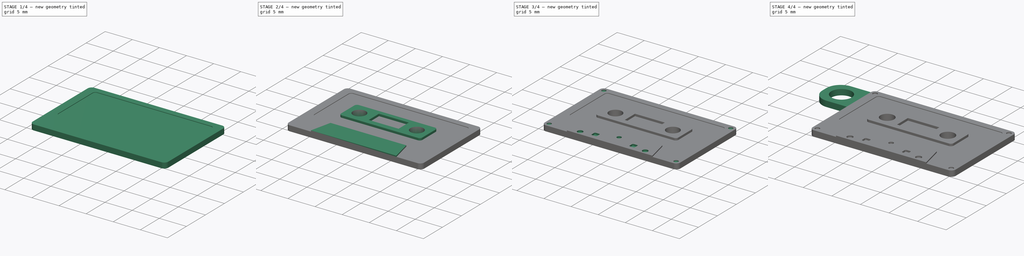
[diagram: build sequence overview — one tinted view per stage of 4, left to right]
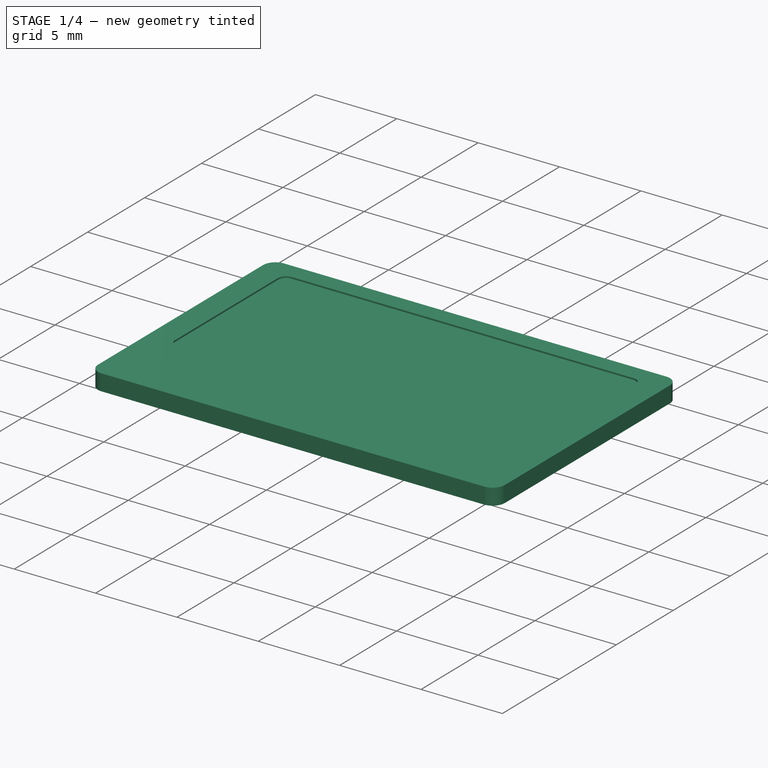
[diagram: stage 1 of 4 — iso view after this stage's code; geometry added in this stage tinted green]
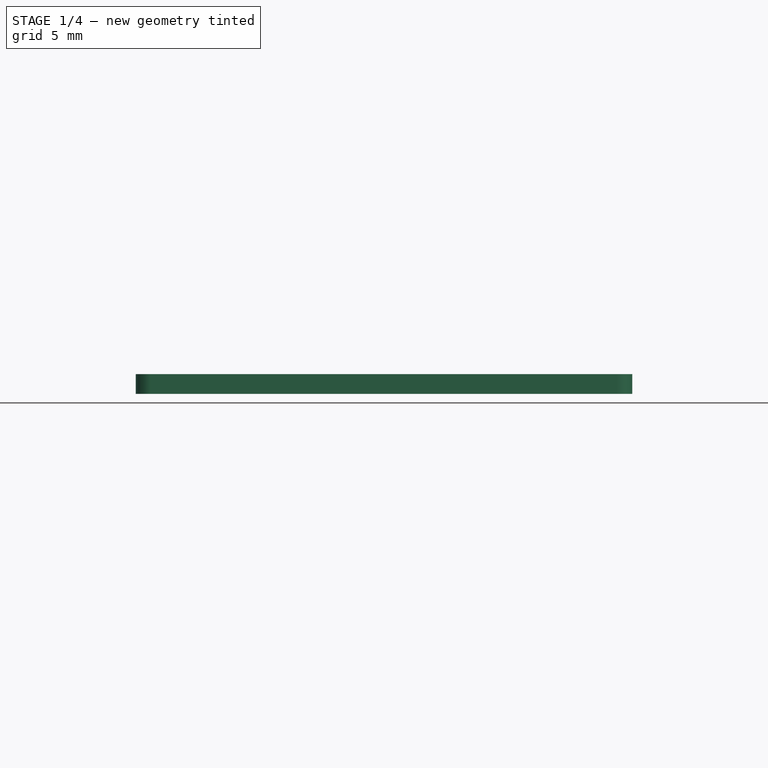
[diagram: stage 1 of 4 — front view after this stage's code; geometry added in this stage tinted green]
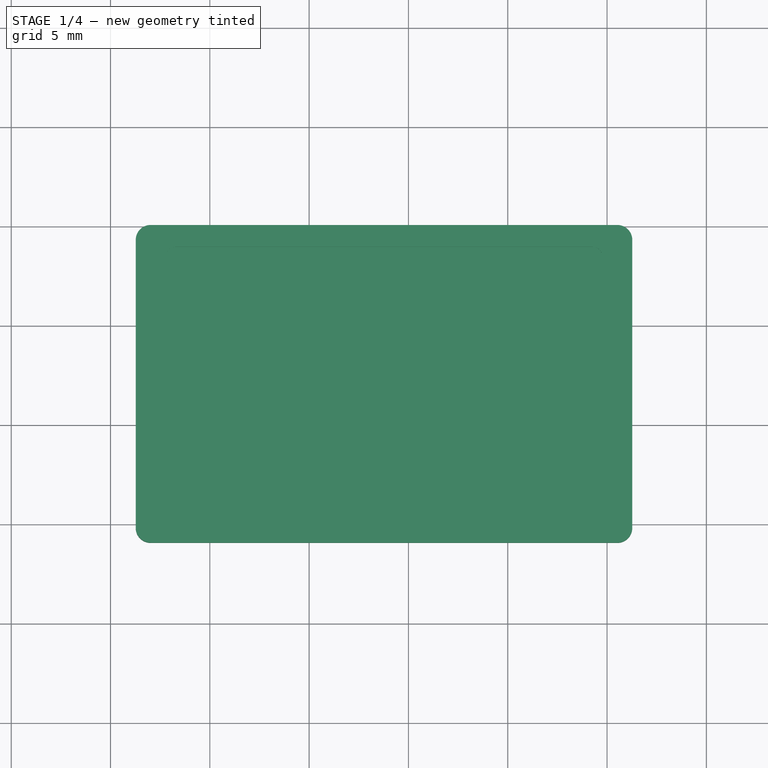
[diagram: stage 1 of 4 — top view after this stage's code; geometry added in this stage tinted green]
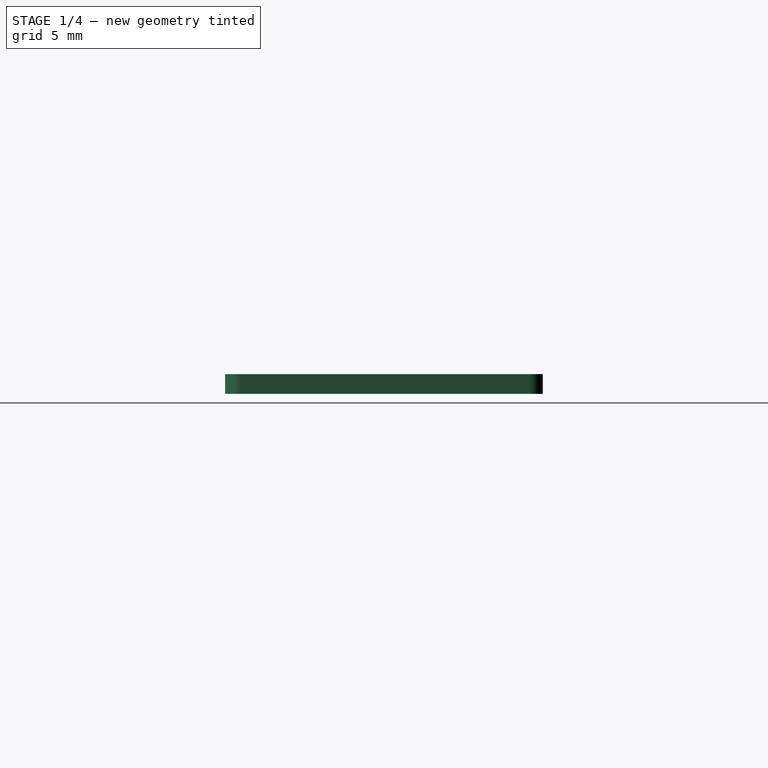
[diagram: stage 1 of 4 — right view after this stage's code; geometry added in this stage tinted green]
FCSTD DOCUMENT  (FreeCAD 0.18R16146 (Git))
Label: tape_keyring
License: All rights reserved
LicenseURL: http://en.wikipedia.org/wiki/All_rights_reserved
objects: Sketcher::SketchObject×9, PartDesign::Pocket×5, PartDesign::Pad×4, PartDesign::Fillet×2, PartDesign::Body×1
note: 30 computed .brp shape members not serialized (recipe doc carries the construction recipe); baked Part::Feature solids carry a one-line shape summary decoded from their .brp

FEATURE [Sketcher::SketchObject] Sketch
  MapMode = 5
  Support = -> [XY_Plane]
  sketch-geometry (4):
    g0: LineSegment StartX=-8.73127 StartY=10.0752 StartZ=0 EndX=16.2687 EndY=10.0752 EndZ=0
    g1: LineSegment StartX=16.2687 StartY=10.0752 StartZ=0 EndX=16.2687 EndY=-5.9248 EndZ=0
    g2: LineSegment StartX=16.2687 StartY=-5.9248 StartZ=0 EndX=-8.73127 EndY=-5.9248 EndZ=0
    g3: LineSegment StartX=-8.73127 StartY=-5.9248 StartZ=0 EndX=-8.73127 EndY=10.0752 EndZ=0
  constraints (10):
    c: Coincident(g0,g1)
    c: Coincident(g1,g2)
    c: Coincident(g2,g3)
    c: Coincident(g3,g0)
    c: Horizontal(g0)
    c: Horizontal(g2)
    c: Vertical(g1)
    c: Vertical(g3)
    c: DistanceX(g0,g0) = 25
    c: Distance(g3) = 16
FEATURE [PartDesign::Pad] Pad
  Length = 1
  Length2 = 100
  Profile = -> Sketch
  Type = 0
FEATURE [Sketcher::SketchObject] Sketch001
  ExternalGeometry = -> [Pad]
  MapMode = 5
  Placement = pos=(0,0,1) rot=(0,0,1;0rad)
  Support = -> [Pad]
  sketch-geometry (11):
    g0: LineSegment StartX=-6.73127 StartY=8.9752 StartZ=0 EndX=14.2687 EndY=8.9752 EndZ=0
    g1: LineSegment StartX=14.7687 StartY=8.4752 StartZ=0 EndX=14.7687 EndY=-0.524804 EndZ=0
    g2: LineSegment StartX=14.2687 StartY=-1.0248 StartZ=0 EndX=-6.73127 EndY=-1.0248 EndZ=0
    g3: LineSegment StartX=-7.23127 StartY=-0.524804 StartZ=0 EndX=-7.23127 EndY=8.4752 EndZ=0
    g4: LineSegment [constr] StartX=3.76873 StartY=11.4159 StartZ=0 EndX=3.76873 EndY=-6.68407 EndZ=0
    g5: ArcOfCircle CenterX=-6.73127 CenterY=8.4752 CenterZ=0 NormalX=0 NormalY=0 NormalZ=1 AngleXU=0 Radius=0.5 StartAngle=1.5708 EndAngle=3.14159
    g6: ArcOfCircle CenterX=-6.73127 CenterY=-0.524804 CenterZ=0 NormalX=0 NormalY=0 NormalZ=1 AngleXU=0 Radius=0.5 StartAngle=3.14159 EndAngle=4.71239
    g7: ArcOfCircle CenterX=14.2687 CenterY=8.4752 CenterZ=0 NormalX=0 NormalY=0 NormalZ=1 AngleXU=0 Radius=0.5 StartAngle=1.381e-13 EndAngle=1.5708
    g8: ArcOfCircle CenterX=14.2687 CenterY=-0.524804 CenterZ=0 NormalX=0 NormalY=0 NormalZ=1 AngleXU=0 Radius=0.5 StartAngle=4.71239 EndAngle=6.28319
    g9: GeomPoint X=3.76873 Y=8.9752 Z=0
    g10: GeomPoint X=3.76873 Y=10.0752 Z=0
  constraints (24):
    c: Horizontal(g2)
    c: Vertical(g1)
    c: Vertical(g3)
    c: Symmetric(g-4,g-5,g4)
    c: Tangent(g0,g5) = 1.5708
    c: Tangent(g3,g5) = 1.5708
    c: Tangent(g3,g6) = 1.5708
    c: Tangent(g2,g6) = 1.5708
    c: Tangent(g0,g7) = 1.5708
    c: Tangent(g1,g7) = 1.5708
    c: Tangent(g1,g8) = 1.5708
    c: Tangent(g2,g8) = 1.5708
    c: PointOnObject(g9,g0)
    c: PointOnObject(g9,g4)
    c: PointOnObject(g10,g4)
    c: PointOnObject(g10,g-3)
    c: DistanceY(g9,g10) = 1.1
    c: Symmetric(g0,g0,g4)
    c: Equal(g8,g6)
    c: Equal(g6,g5)
    c: Equal(g5,g7)
    c: Radius(g7) = 0.5
    c: DistanceX(g3,g1) = 22
    c: DistanceY(g2,g0) = 10
FEATURE [PartDesign::Pocket] Pocket
  BaseFeature = -> Pad
  Length = 0.1
  Length2 = 100
  Profile = -> Sketch001
  Type = 0
FEATURE [PartDesign::Fillet] Fillet
  Base = -> Pocket [Edge1,Edge5,Edge8,Edge2]
  BaseFeature = -> Pocket
  Radius = 0.75
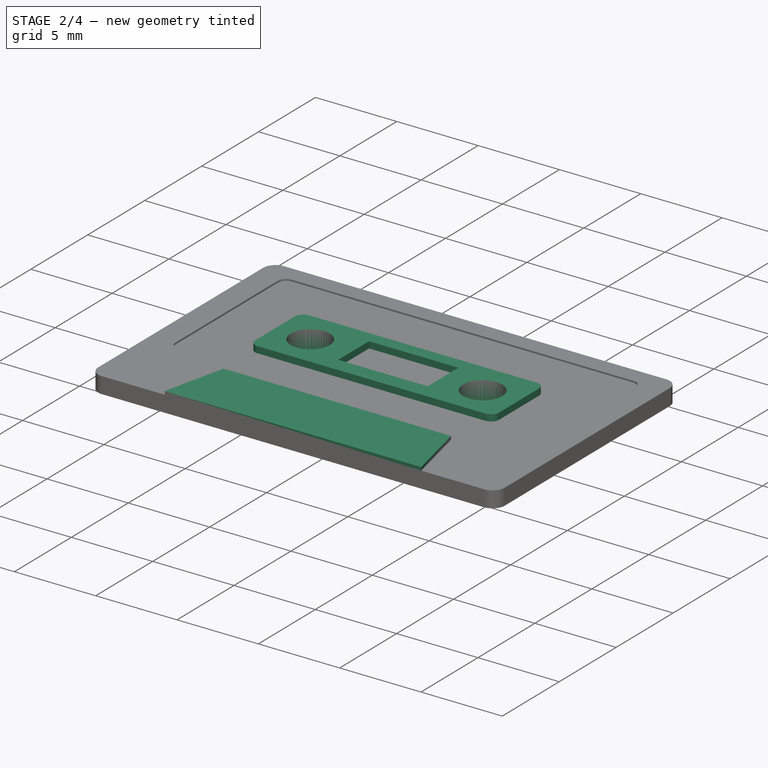
[diagram: stage 2 of 4 — iso view after this stage's code; geometry added in this stage tinted green]
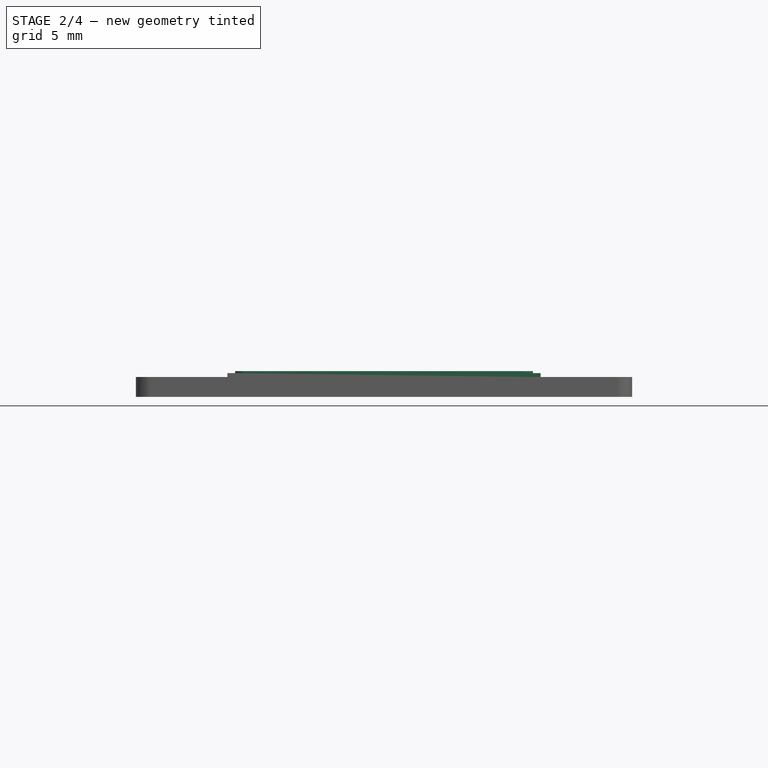
[diagram: stage 2 of 4 — front view after this stage's code; geometry added in this stage tinted green]
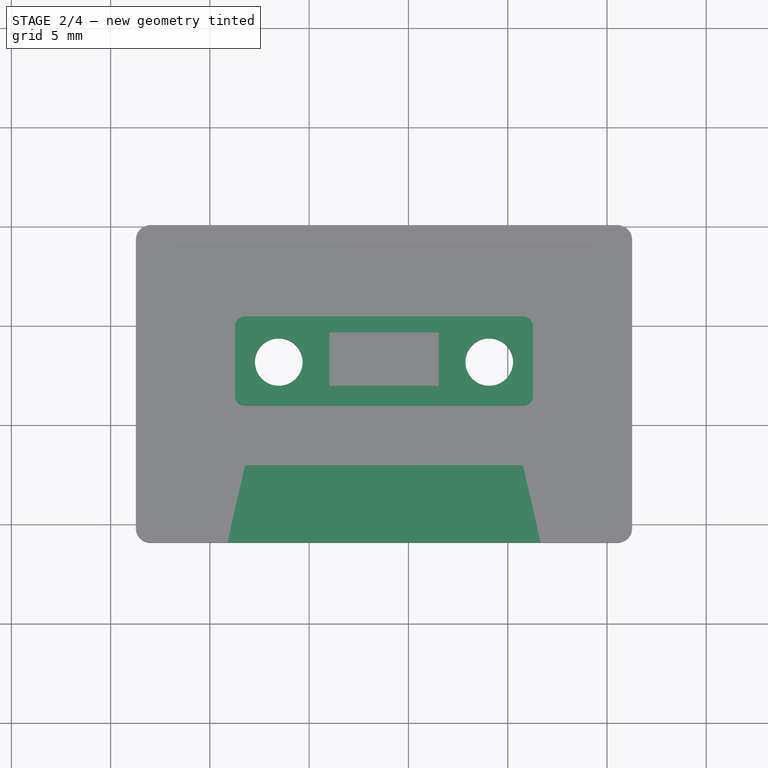
[diagram: stage 2 of 4 — top view after this stage's code; geometry added in this stage tinted green]
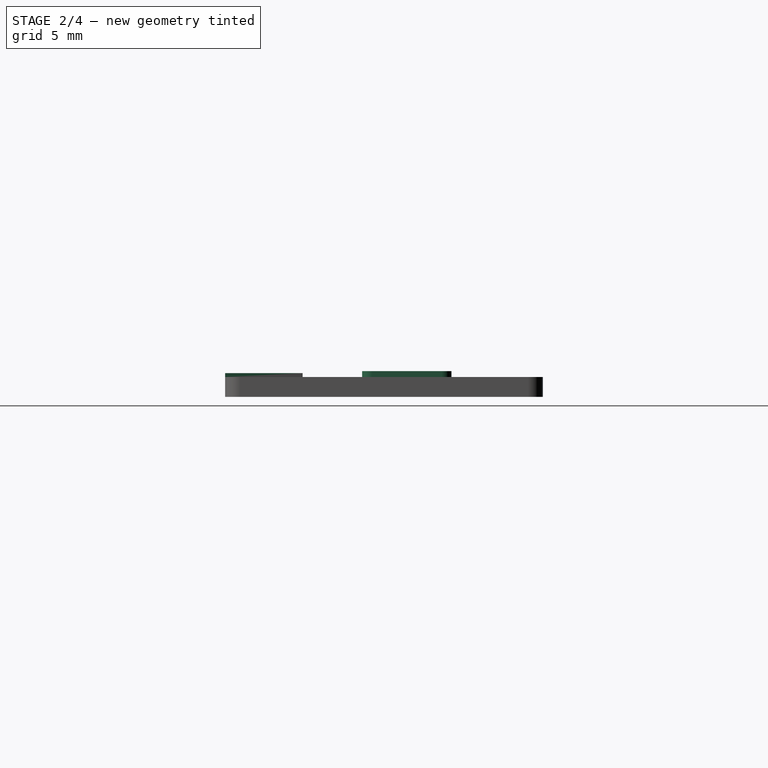
[diagram: stage 2 of 4 — right view after this stage's code; geometry added in this stage tinted green]
FEATURE [Sketcher::SketchObject] Sketch002
  ExternalGeometry = -> [Fillet]
  MapMode = 5
  Placement = pos=(0,0,1) rot=(0,0,1;0rad)
  Support = -> [Fillet]
  sketch-geometry (5):
    g0: LineSegment [constr] StartX=3.76873 StartY=-26.2208 StartZ=0 EndX=3.76873 EndY=73.7792 EndZ=0
    g1: LineSegment StartX=-4.12009 StartY=-5.9248 StartZ=0 EndX=-3.23127 EndY=-2.0248 EndZ=0
    g2: LineSegment StartX=-3.23127 StartY=-2.0248 StartZ=0 EndX=10.7687 EndY=-2.0248 EndZ=0
    g3: LineSegment StartX=10.7687 StartY=-2.0248 StartZ=0 EndX=11.6575 EndY=-5.9248 EndZ=0
    g4: LineSegment StartX=-4.12009 StartY=-5.9248 StartZ=0 EndX=11.6575 EndY=-5.9248 EndZ=0
  constraints (13):
    c: Symmetric(g-4,g-4,g0)
    c: Symmetric(g-3,g-3,g0)
    c: PointOnObject(g1,g-3)
    c: Coincident(g4,g1)
    c: Coincident(g4,g3)
    c: Symmetric(g2,g1,g0)
    c: Coincident(g3,g2)
    c: Coincident(g2,g1)
    c: DistanceY(g0,g0) = 100
    c: Symmetric(g1,g3,g0)
    c: DistanceX(g2,g2) = 14
    c: Distance(g1) = 4
    c: DistanceY(g1,g-4) = 1
FEATURE [PartDesign::Pad] Pad001
  BaseFeature = -> Fillet
  Length = 0.2
  Length2 = 100
  Profile = -> Sketch002
  Type = 0
FEATURE [Sketcher::SketchObject] Sketch003
  ExternalGeometry = -> [Pad001]
  MapMode = 5
  Placement = pos=(0,0,0.9) rot=(0,0,1;0rad)
  Support = -> [Pad001]
  sketch-geometry (13):
    g0: LineSegment [constr] StartX=3.76873 StartY=12.8844 StartZ=0 EndX=3.76873 EndY=-10.4835 EndZ=0
    g1: LineSegment StartX=-3.23127 StartY=5.4752 StartZ=0 EndX=10.7687 EndY=5.4752 EndZ=0
    g2: LineSegment StartX=11.2687 StartY=4.9752 StartZ=0 EndX=11.2687 EndY=1.4752 EndZ=0
    g3: LineSegment StartX=10.7687 StartY=0.975196 StartZ=0 EndX=-3.23127 EndY=0.975196 EndZ=0
    g4: LineSegment StartX=-3.73127 StartY=1.4752 StartZ=0 EndX=-3.73127 EndY=4.9752 EndZ=0
    g5: ArcOfCircle CenterX=-3.23127 CenterY=4.9752 CenterZ=0 NormalX=0 NormalY=0 NormalZ=1 AngleXU=0 Radius=0.5 StartAngle=1.5708 EndAngle=3.14159
    g6: ArcOfCircle CenterX=10.7687 CenterY=4.9752 CenterZ=0 NormalX=0 NormalY=0 NormalZ=1 AngleXU=0 Radius=0.5 StartAngle=4e-16 EndAngle=1.5708
    g7: ArcOfCircle CenterX=10.7687 CenterY=1.4752 CenterZ=0 NormalX=0 NormalY=0 NormalZ=1 AngleXU=0 Radius=0.5 StartAngle=4.71239 EndAngle=6.28319
    g8: ArcOfCircle CenterX=-3.23127 CenterY=1.4752 CenterZ=0 NormalX=0 NormalY=0 NormalZ=1 AngleXU=0 Radius=0.5 StartAngle=3.14159 EndAngle=4.71239
    g9: LineSegment StartX=1.02538 StartY=4.6752 StartZ=0 EndX=6.52538 EndY=4.6752 EndZ=0
    g10: LineSegment StartX=6.52538 StartY=4.6752 StartZ=0 EndX=6.52538 EndY=1.9752 EndZ=0
    g11: LineSegment StartX=6.52538 StartY=1.9752 StartZ=0 EndX=1.02538 EndY=1.9752 EndZ=0
    g12: LineSegment StartX=1.02538 StartY=1.9752 StartZ=0 EndX=1.02538 EndY=4.6752 EndZ=0
  constraints (33):
    c: Symmetric(g-3,g-3,g0)
    c: Symmetric(g-4,g-4,g0)
    c: Horizontal(g1)
    c: Horizontal(g3)
    c: Vertical(g2)
    c: Vertical(g4)
    c: Tangent(g4,g5) = 1.5708
    c: Tangent(g1,g5) = 1.5708
    c: Tangent(g1,g6) = 1.5708
    c: Tangent(g2,g6) = 1.5708
    c: Tangent(g2,g7) = 1.5708
    c: Tangent(g3,g7) = 1.5708
    c: Tangent(g3,g8) = 1.5708
    c: Tangent(g4,g8) = 1.5708
    c: Equal(g5,g6)
    c: Equal(g6,g7)
    c: Equal(g7,g8)
    c: Radius(g6) = 0.5
    c: DistanceX(g4,g2) = 15
    c: DistanceY(g3,g1) = 4.5
    c: DistanceY(g1,g-3) = 3.5
    c: Symmetric(g1,g1,g0)
    c: Coincident(g9,g10)
    c: Coincident(g10,g11)
    c: Coincident(g11,g12)
    c: Coincident(g12,g9)
    c: Horizontal(g9)
    c: Horizontal(g11)
    c: Vertical(g10)
    c: Vertical(g12)
    c: DistanceX(g9,g9) = 5.5
    c: DistanceY(g12,g12) = 2.7
    c: DistanceY(g9,g1) = 0.8
FEATURE [PartDesign::Pad] Pad002
  BaseFeature = -> Pad001
  Length = 0.4
  Length2 = 100
  Profile = -> Sketch003
  Type = 0
FEATURE [Sketcher::SketchObject] Sketch004
  ExternalGeometry = -> [Pad002]
  MapMode = 5
  Placement = pos=(0,0,1.3) rot=(0,0,1;0rad)
  Support = -> [Pad002]
  sketch-geometry (4):
    g0: LineSegment [constr] StartX=-11.1736 StartY=3.1752 StartZ=0 EndX=18.9391 EndY=3.1752 EndZ=0
    g1: LineSegment [constr] StartX=3.76873 StartY=12.8052 StartZ=0 EndX=3.76873 EndY=-10.0766 EndZ=0
    g2: Circle CenterX=-1.53127 CenterY=3.1752 CenterZ=0 NormalX=0 NormalY=0 NormalZ=1 AngleXU=0 Radius=1.2
    g3: Circle CenterX=9.06873 CenterY=3.1752 CenterZ=0 NormalX=0 NormalY=0 NormalZ=1 AngleXU=0 Radius=1.2
  constraints (9):
    c: Symmetric(g-3,g-3,g1)
    c: Symmetric(g-4,g-4,g1)
    c: Radius(g2) = 1.2
    c: DistanceY(g-4,g2) = 2.2
    c: DistanceX(g-5,g2) = 2.2
    c: PointOnObject(g2,g0)
    c: Horizontal(g0)
    c: Equal(g2,g3)
    c: Symmetric(g2,g3,g1)
FEATURE [PartDesign::Pocket] Pocket001
  BaseFeature = -> Pad002
  Length = 5
  Length2 = 100
  Profile = -> Sketch004
  Type = 0
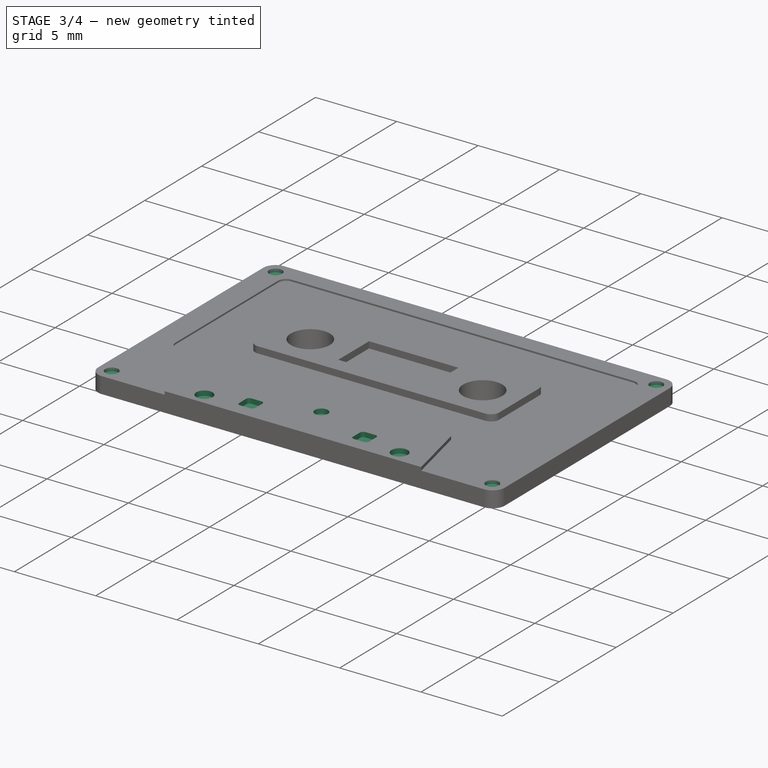
[diagram: stage 3 of 4 — iso view after this stage's code; geometry added in this stage tinted green]
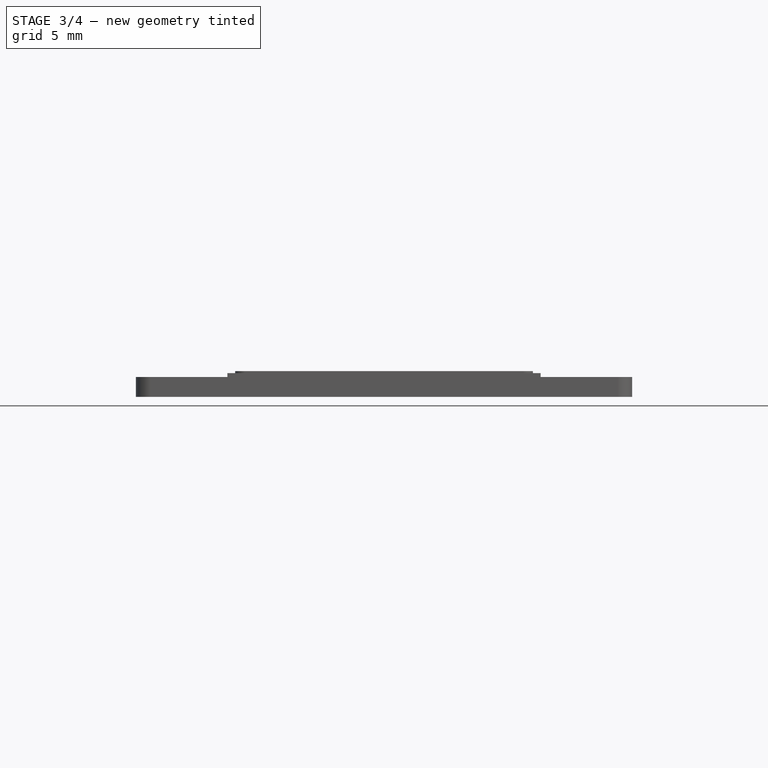
[diagram: stage 3 of 4 — front view after this stage's code; geometry added in this stage tinted green]
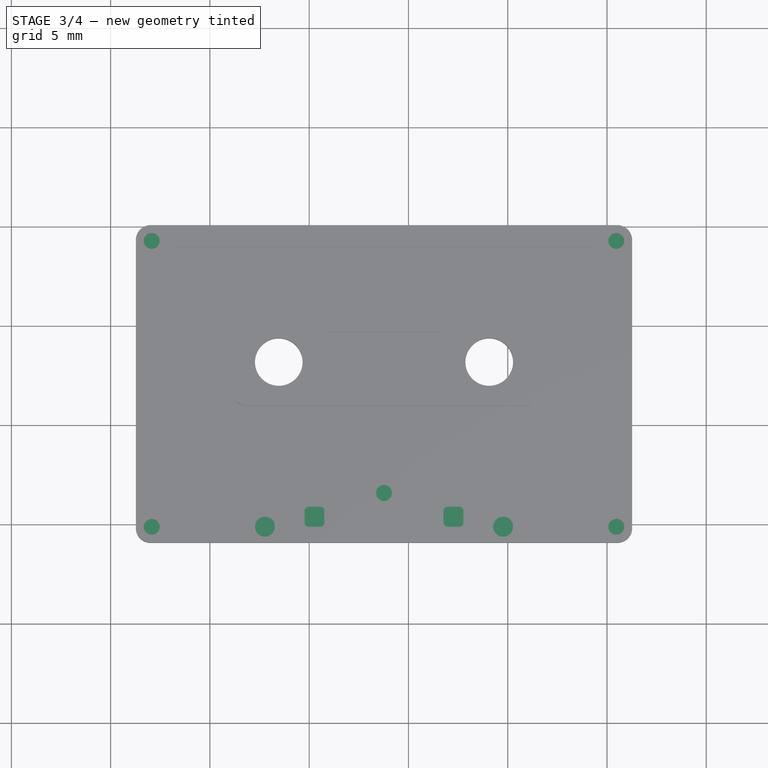
[diagram: stage 3 of 4 — top view after this stage's code; geometry added in this stage tinted green]
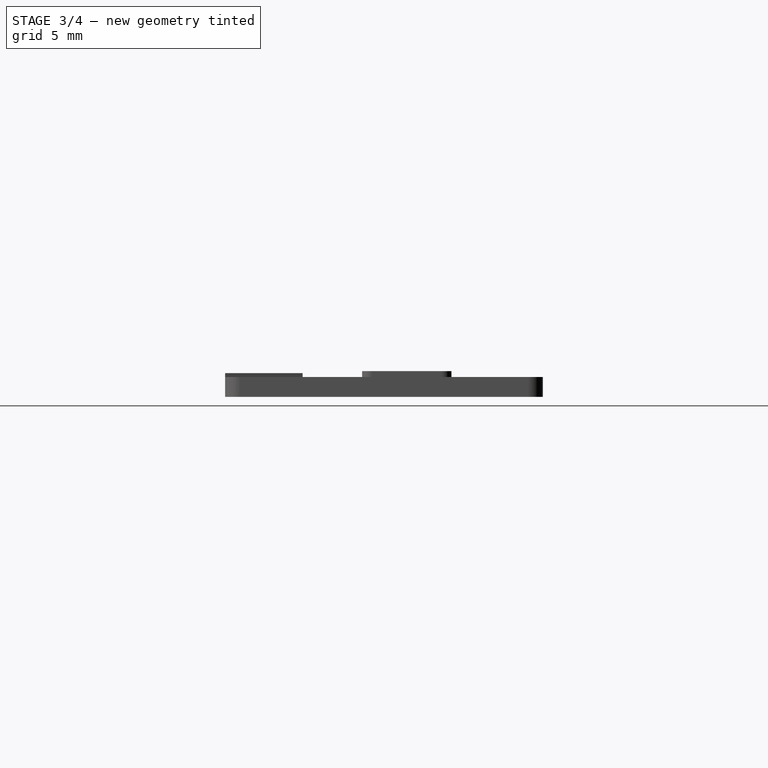
[diagram: stage 3 of 4 — right view after this stage's code; geometry added in this stage tinted green]
FEATURE [Sketcher::SketchObject] Sketch005
  ExternalGeometry = -> [Pocket001]
  MapMode = 5
  Placement = pos=(0,0,1) rot=(0,0,1;0rad)
  Support = -> [Pocket001]
  sketch-geometry (5):
    g0: LineSegment [constr] StartX=3.76873 StartY=11.7611 StartZ=0 EndX=3.76873 EndY=-9.15786 EndZ=0
    g1: Circle CenterX=-7.93127 CenterY=9.2752 CenterZ=0 NormalX=0 NormalY=0 NormalZ=1 AngleXU=0 Radius=0.4
    g2: Circle CenterX=-7.93127 CenterY=-5.1248 CenterZ=0 NormalX=0 NormalY=0 NormalZ=1 AngleXU=0 Radius=0.4
    g3: Circle CenterX=15.4687 CenterY=-5.1248 CenterZ=0 NormalX=0 NormalY=0 NormalZ=1 AngleXU=0 Radius=0.4
    g4: Circle CenterX=15.4687 CenterY=9.2752 CenterZ=0 NormalX=0 NormalY=0 NormalZ=1 AngleXU=0 Radius=0.4
  constraints (11):
    c: Symmetric(g-3,g-3,g0)
    c: Radius(g1) = 0.4
    c: DistanceY(g1,g-3) = 0.8
    c: DistanceX(g-5,g1) = 0.8
    c: Equal(g4,g1)
    c: Equal(g1,g2)
    c: Equal(g2,g3)
    c: DistanceX(g-5,g2) = 0.8
    c: DistanceY(g-7,g2) = 0.8
    c: Symmetric(g2,g3,g0)
    c: Symmetric(g4,g1,g0)
FEATURE [PartDesign::Pocket] Pocket002
  BaseFeature = -> Pocket001
  Length = 0.2
  Length2 = 100
  Profile = -> Sketch005
  Type = 0
FEATURE [Sketcher::SketchObject] Sketch006
  ExternalGeometry = -> [Pocket002]
  MapMode = 5
  Placement = pos=(0,0,1.2) rot=(0,0,1;0rad)
  Support = -> [Pocket002]
  sketch-geometry (20):
    g0: LineSegment [constr] StartX=3.76873 StartY=12.2635 StartZ=0 EndX=3.76873 EndY=-9.8064 EndZ=0
    g1: Circle CenterX=3.76873 CenterY=-3.4248 CenterZ=0 NormalX=0 NormalY=0 NormalZ=1 AngleXU=0 Radius=0.4
    g2: Circle CenterX=-2.23127 CenterY=-5.1248 CenterZ=0 NormalX=0 NormalY=0 NormalZ=1 AngleXU=0 Radius=0.5
    g3: Circle CenterX=9.76873 CenterY=-5.1248 CenterZ=0 NormalX=0 NormalY=0 NormalZ=1 AngleXU=0 Radius=0.5
    g4: LineSegment StartX=-0.0312708 StartY=-4.1248 StartZ=0 EndX=0.568729 EndY=-4.1248 EndZ=0
    g5: LineSegment StartX=0.768729 StartY=-4.3248 StartZ=0 EndX=0.768729 EndY=-4.9248 EndZ=0
    g6: LineSegment StartX=0.568729 StartY=-5.1248 StartZ=0 EndX=-0.0312708 EndY=-5.1248 EndZ=0
    g7: LineSegment StartX=-0.231271 StartY=-4.9248 StartZ=0 EndX=-0.231271 EndY=-4.3248 EndZ=0
    g8: ArcOfCircle CenterX=-0.0312708 CenterY=-4.3248 CenterZ=0 NormalX=0 NormalY=0 NormalZ=1 AngleXU=0 Radius=0.2 StartAngle=1.5708 EndAngle=3.14159
    g9: ArcOfCircle CenterX=0.568729 CenterY=-4.3248 CenterZ=0 NormalX=0 NormalY=0 NormalZ=1 AngleXU=0 Radius=0.2 StartAngle=0 EndAngle=1.5708
    g10: ArcOfCircle CenterX=0.568729 CenterY=-4.9248 CenterZ=0 NormalX=0 NormalY=0 NormalZ=1 AngleXU=0 Radius=0.2 StartAngle=4.71239 EndAngle=6.28319
    g11: ArcOfCircle CenterX=-0.0312708 CenterY=-4.9248 CenterZ=0 NormalX=0 NormalY=0 NormalZ=1 AngleXU=0 Radius=0.2 StartAngle=3.14159 EndAngle=4.71239
    g12: LineSegment StartX=7.56873 StartY=-4.1248 StartZ=0 EndX=6.96873 EndY=-4.1248 EndZ=0
    g13: LineSegment StartX=6.76873 StartY=-4.3248 StartZ=0 EndX=6.76873 EndY=-4.9248 EndZ=0
    g14: LineSegment StartX=6.96873 StartY=-5.1248 StartZ=0 EndX=7.56873 EndY=-5.1248 EndZ=0
    g15: LineSegment StartX=7.76873 StartY=-4.9248 StartZ=0 EndX=7.76873 EndY=-4.3248 EndZ=0
    g16: ArcOfCircle CenterX=7.56873 CenterY=-4.3248 CenterZ=0 NormalX=0 NormalY=0 NormalZ=1 AngleXU=0 Radius=0.2 StartAngle=0 EndAngle=1.5708
    g17: ArcOfCircle CenterX=6.96873 CenterY=-4.3248 CenterZ=0 NormalX=0 NormalY=0 NormalZ=1 AngleXU=0 Radius=0.2 StartAngle=1.5708 EndAngle=3.14159
    g18: ArcOfCircle CenterX=6.96873 CenterY=-4.9248 CenterZ=0 NormalX=0 NormalY=0 NormalZ=1 AngleXU=0 Radius=0.2 StartAngle=3.14159 EndAngle=4.71239
    g19: ArcOfCircle CenterX=7.56873 CenterY=-4.9248 CenterZ=0 NormalX=0 NormalY=0 NormalZ=1 AngleXU=0 Radius=0.2 StartAngle=4.71239 EndAngle=6.28319
  constraints (46):
    c: Symmetric(g-3,g-3,g0)
    c: Radius(g1) = 0.4
    c: PointOnObject(g1,g0)
    c: DistanceY(g-3,g1) = 2.5
    c: Radius(g2) = 0.5
    c: Radius(g3) = 0.5
    c: DistanceY(g-3,g2) = 0.8
    c: Symmetric(g2,g3,g0)
    c: Horizontal(g4)
    c: Horizontal(g6)
    c: Vertical(g5)
    c: Vertical(g7)
    c: Tangent(g7,g8) = 1.5708
    c: Tangent(g4,g8) = 1.5708
    c: Tangent(g4,g9) = 1.5708
    c: Tangent(g5,g9) = 1.5708
    c: Tangent(g5,g10) = 1.5708
    c: Tangent(g6,g10) = 1.5708
    c: Tangent(g6,g11) = 1.5708
    c: Tangent(g7,g11) = 1.5708
    c: Equal(g8,g9)
    c: Equal(g9,g10)
    c: Equal(g10,g11)
    c: Radius(g9) = 0.2
    c: DistanceY(g6,g4) = 1
    c: DistanceX(g7,g5) = 1
    c: DistanceY(g-3,g6) = 0.8
    c: DistanceX(g-4,g7) = 8.5
    c: DistanceX(g2,g7) = 2
    c: Horizontal(g12)
    c: Horizontal(g14)
    c: Vertical(g13)
    c: Vertical(g15)
    c: Tangent(g15,g16) = -1.5708
    c: Tangent(g12,g16) = -1.5708
    c: Tangent(g12,g17) = -1.5708
    c: Tangent(g13,g17) = -1.5708
    c: Tangent(g13,g18) = -1.5708
    c: Tangent(g14,g18) = -1.5708
    c: Tangent(g14,g19) = -1.5708
    c: Tangent(g15,g19) = -1.5708
    c: Equal(g16,g17)
    c: Equal(g18,g19)
    c: Symmetric(g5,g13,g0)
    c: Symmetric(g4,g12,g0)
    c: Symmetric(g14,g6,g0)
FEATURE [PartDesign::Pocket] Pocket003
  BaseFeature = -> Pocket002
  Length = 0.3
  Length2 = 100
  Profile = -> Sketch006
  Type = 0
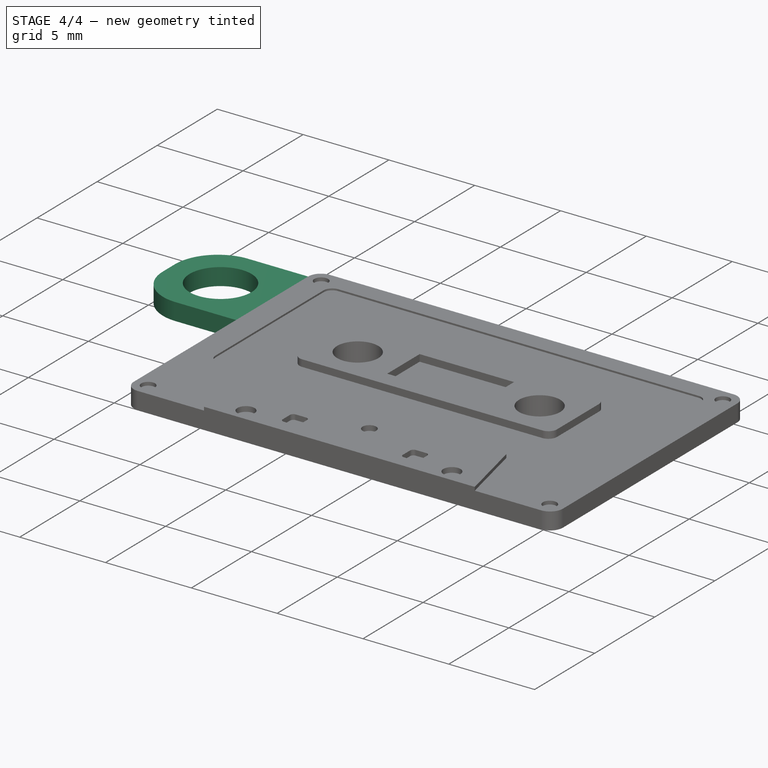
[diagram: stage 4 of 4 — iso view after this stage's code; geometry added in this stage tinted green]
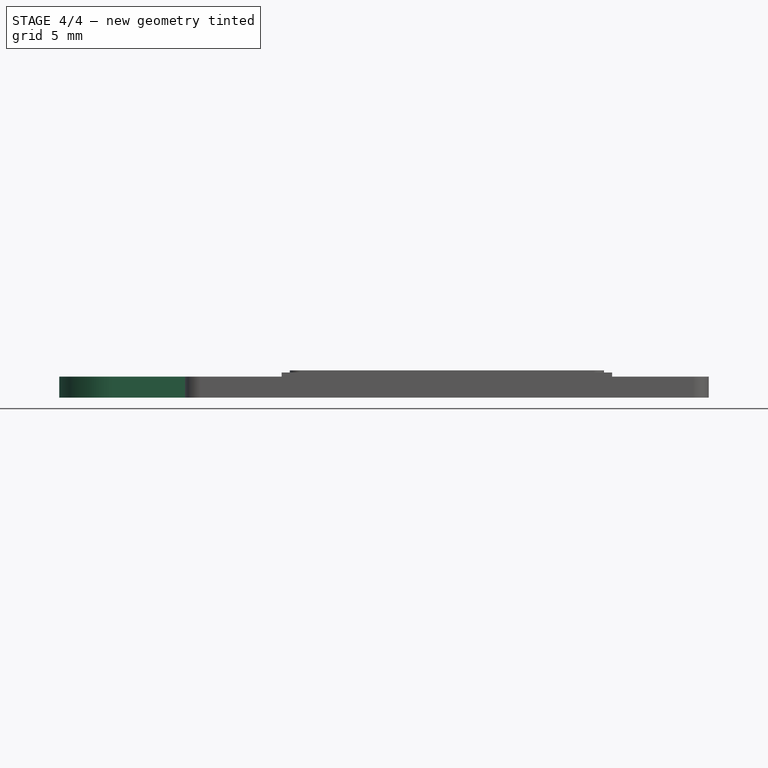
[diagram: stage 4 of 4 — front view after this stage's code; geometry added in this stage tinted green]
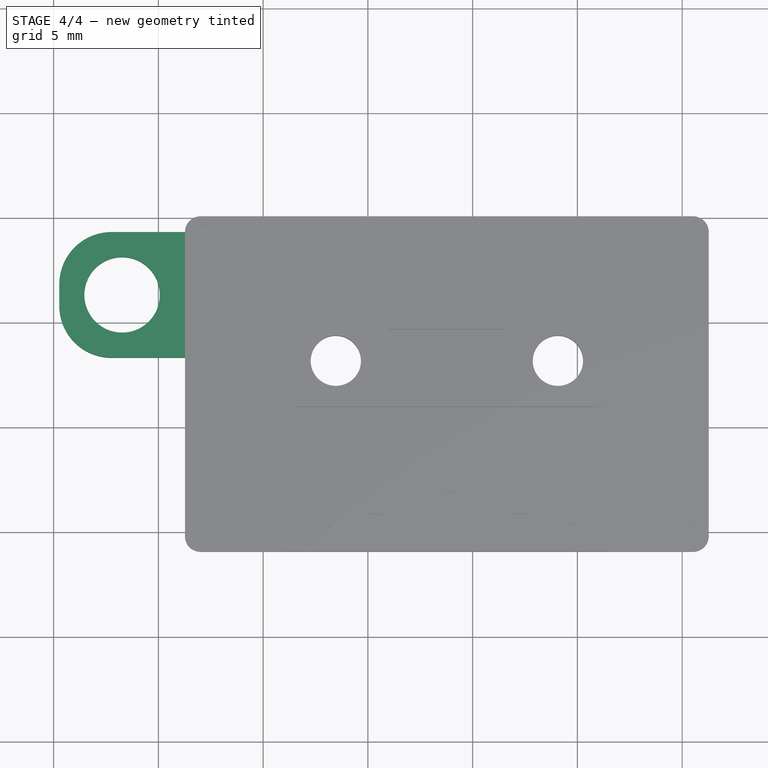
[diagram: stage 4 of 4 — top view after this stage's code; geometry added in this stage tinted green]
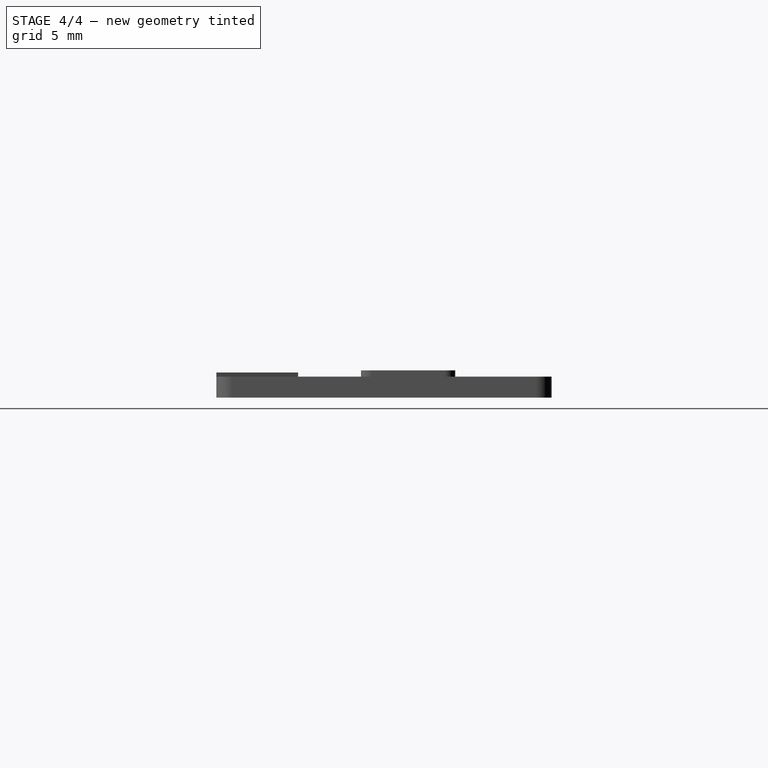
[diagram: stage 4 of 4 — right view after this stage's code; geometry added in this stage tinted green]
FEATURE [Sketcher::SketchObject] Sketch007
  ExternalGeometry = -> [Pocket003]
  MapMode = 5
  Placement = pos=(-8.73127,0,0) rot=(0.57735,-0.57735,-0.57735;2.0944rad)
  Support = -> [Pocket003]
  sketch-geometry (4):
    g0: LineSegment StartX=-9.3252 StartY=0 StartZ=0 EndX=-3.3252 EndY=0 EndZ=0
    g1: LineSegment StartX=-3.3252 StartY=0 StartZ=0 EndX=-3.3252 EndY=1 EndZ=0
    g2: LineSegment StartX=-3.3252 StartY=1 StartZ=0 EndX=-9.3252 EndY=1 EndZ=0
    g3: LineSegment StartX=-9.3252 StartY=1 StartZ=0 EndX=-9.3252 EndY=0 EndZ=0
  constraints (11):
    c: Coincident(g0,g1)
    c: Coincident(g1,g2)
    c: Coincident(g2,g3)
    c: Coincident(g3,g0)
    c: Horizontal(g0)
    c: Horizontal(g2)
    c: Vertical(g1)
    c: Vertical(g3)
    c: PointOnObject(g0,g-5)
    c: Coincident(g2,g-4)
    c: DistanceX(g2,g2) = 6
FEATURE [PartDesign::Pad] Pad003
  BaseFeature = -> Pocket003
  Length = 6
  Length2 = 100
  Profile = -> Sketch007
  Type = 0
FEATURE [PartDesign::Fillet] Fillet001
  Base = -> Pad003 [Edge89,Edge55]
  BaseFeature = -> Pad003
  Radius = 2.5
FEATURE [Sketcher::SketchObject] Sketch008
  ExternalGeometry = -> [Fillet001]
  MapMode = 5
  Placement = pos=(0,0,1) rot=(0,0,1;0rad)
  Support = -> [Fillet001]
  sketch-geometry (2):
    g0: Circle CenterX=-11.7313 CenterY=6.3252 CenterZ=0 NormalX=0 NormalY=0 NormalZ=1 AngleXU=0 Radius=1.8
    g1: LineSegment [constr] StartX=-15.9591 StartY=6.3252 StartZ=0 EndX=-6.85656 EndY=6.3252 EndZ=0
  constraints (4):
    c: Radius(g0) = 1.8
    c: Symmetric(g-5,g-5,g1)
    c: PointOnObject(g0,g1)
    c: DistanceX(g-5,g0) = 3
FEATURE [PartDesign::Pocket] Pocket004
  BaseFeature = -> Fillet001
  Length = 5
  Length2 = 100
  Profile = -> Sketch008
  Type = 0
FEATURE [PartDesign::Body] Body
  Group = -> [Sketch,Pad,Sketch001,Pocket,Fillet,Sketch002,Pad001,Sketch003,Pad002,Sketch004,Pocket001,Sketch005,Pocket002,Sketch006,Pocket003,Sketch007,Pad003,Fillet001,Sketch008,Pocket004]
  Origin = -> Origin
  Tip = -> Pocket004
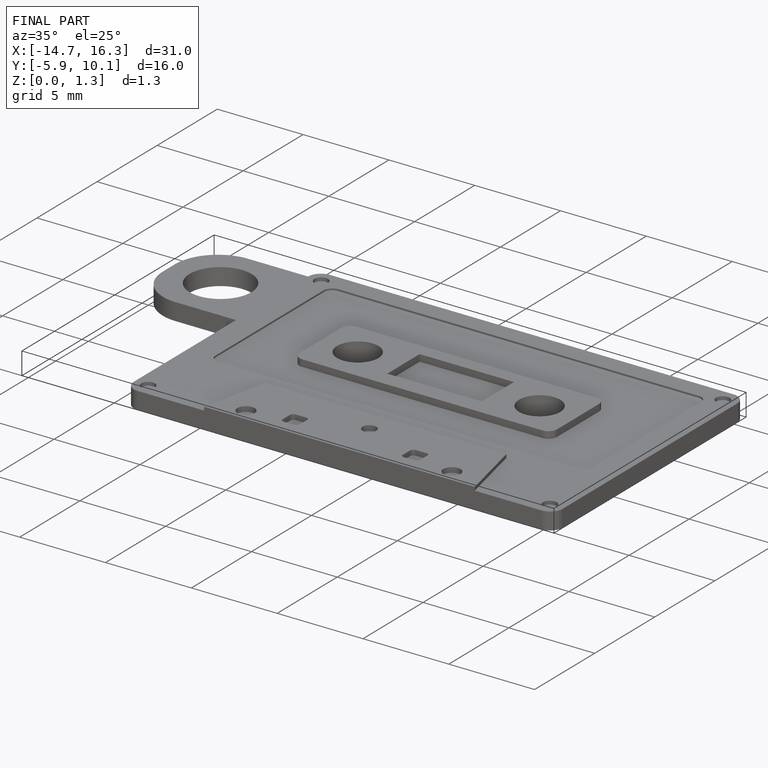
[diagram: finished part — iso view with bounding-box wireframe]
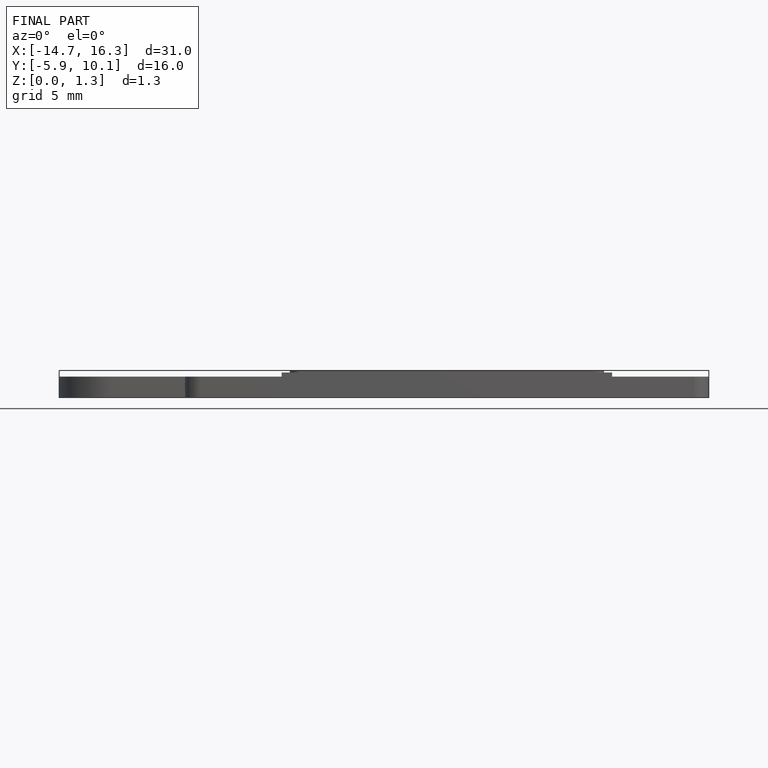
[diagram: finished part — front view with bounding-box wireframe]
